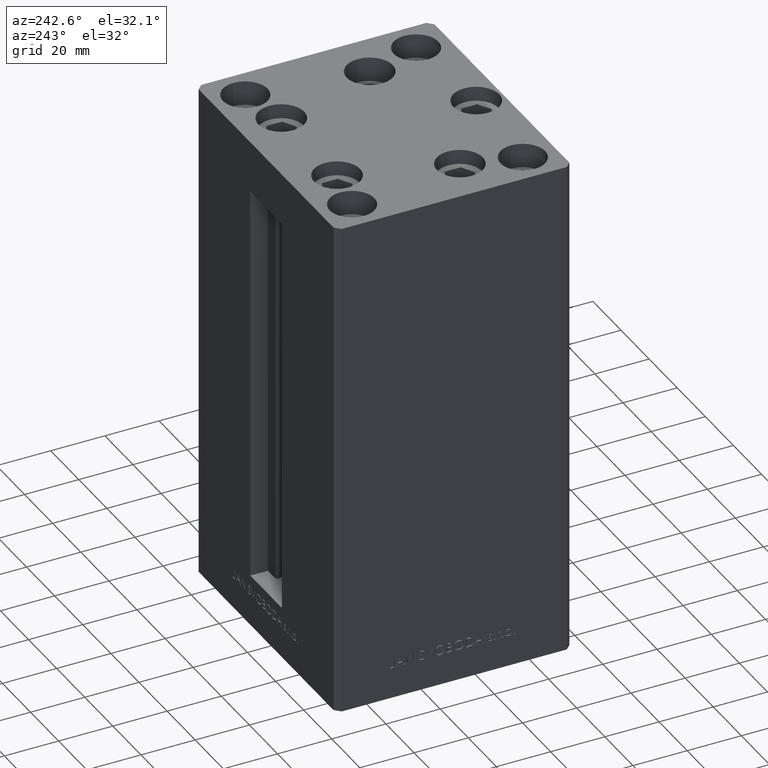
[diagram: clean part render]
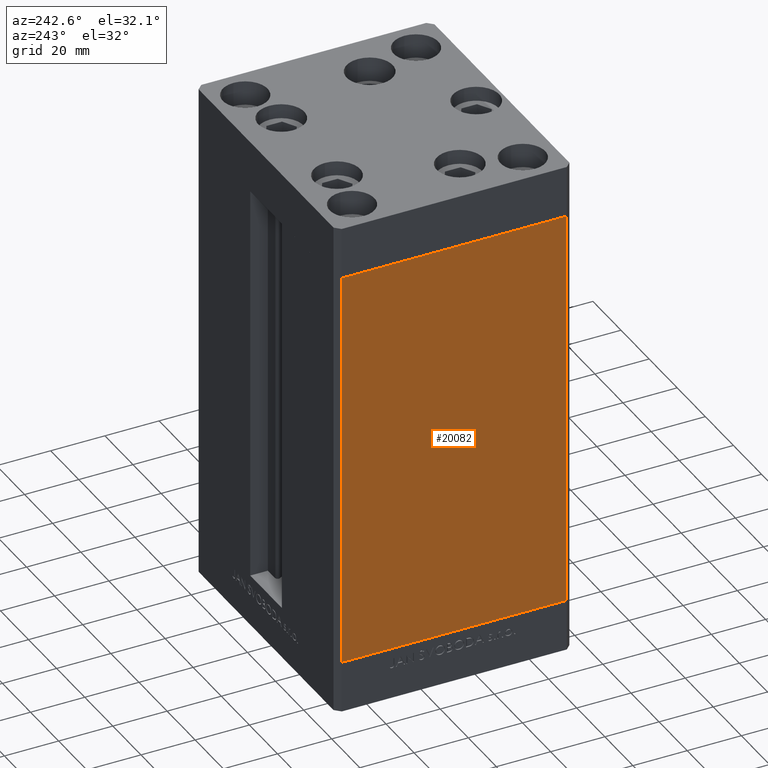
[diagram: same view with one face highlighted and labeled with its STEP entity id]
A machine part, auxiliary view. The second image highlights one B-rep face of the part: STEP entity #20082.
In plain terms, the highlighted planar face has unit normal (1, 0, 0).
Its self-contained STEP definition (entity closure, byte-faithful):
#306 = CARTESIAN_POINT ( 'NONE',  ( -50.00000000000001421, 41.49999999999999289, 0.000000000000000000 ) ) ;
#608 = CARTESIAN_POINT ( 'NONE',  ( -50.00000000000001421, 41.49999999999999289, 148.5000000000000000 ) ) ;
#6919 = EDGE_CURVE ( 'NONE', #11533, #36383, #27462, .T. ) ;
#7552 = DIRECTION ( 'NONE',  ( -0.000000000000000000, -0.000000000000000000, -1.000000000000000000 ) ) ;
#8911 = EDGE_CURVE ( 'NONE', #17163, #36383, #18743, .T. ) ;
#9240 = CARTESIAN_POINT ( 'NONE',  ( -49.99999999999998579, -41.49999999999999289, 148.5000000000000000 ) ) ;
#9359 = DIRECTION ( 'NONE',  ( -0.000000000000000000, -0.000000000000000000, -1.000000000000000000 ) ) ;
#9456 = ORIENTED_EDGE ( 'NONE', *, *, #8911, .F. ) ;
#9820 = VECTOR ( 'NONE', #36143, 1000.000000000000000 ) ;
#11533 = VERTEX_POINT ( 'NONE', #306 ) ;
#12468 = AXIS2_PLACEMENT_3D ( 'NONE', #14761, #13605, #43938 ) ;
#12838 = CARTESIAN_POINT ( 'NONE',  ( -50.00000000000001421, 41.49999999999999289, 148.5000000000000000 ) ) ;
#13185 = EDGE_CURVE ( 'NONE', #46264, #17163, #34407, .T. ) ;
#13605 = DIRECTION ( 'NONE',  ( 1.000000000000000000, 3.344045254895050480E-16, -0.000000000000000000 ) ) ;
#13830 = VECTOR ( 'NONE', #7552, 1000.000000000000000 ) ;
#14761 = CARTESIAN_POINT ( 'NONE',  ( -50.00000000000001421, 41.49999999999999289, 148.5000000000000000 ) ) ;
#15284 = DIRECTION ( 'NONE',  ( 3.344045254895050973E-16, -1.000000000000000000, 0.000000000000000000 ) ) ;
#16250 = ORIENTED_EDGE ( 'NONE', *, *, #6919, .T. ) ;
#17163 = VERTEX_POINT ( 'NONE', #9240 ) ;
#18743 = LINE ( 'NONE', #44855, #13830 ) ;
#20082 = ADVANCED_FACE ( 'NONE', ( #32489 ), #47666, .F. ) ;
#22850 = EDGE_LOOP ( 'NONE', ( #16250, #9456, #29389, #32712 ) ) ;
#27462 = LINE ( 'NONE', #31676, #9820 ) ;
#29389 = ORIENTED_EDGE ( 'NONE', *, *, #13185, .F. ) ;
#31676 = CARTESIAN_POINT ( 'NONE',  ( -50.00000000000001421, 41.49999999999999289, 0.000000000000000000 ) ) ;
#32489 = FACE_OUTER_BOUND ( 'NONE', #22850, .T. ) ;
#32712 = ORIENTED_EDGE ( 'NONE', *, *, #45397, .T. ) ;
#34407 = LINE ( 'NONE', #608, #36074 ) ;
#36074 = VECTOR ( 'NONE', #15284, 1000.000000000000000 ) ;
#36143 = DIRECTION ( 'NONE',  ( 3.344045254895050973E-16, -1.000000000000000000, 0.000000000000000000 ) ) ;
#36383 = VERTEX_POINT ( 'NONE', #46407 ) ;
#42704 = CARTESIAN_POINT ( 'NONE',  ( -50.00000000000001421, 41.49999999999999289, 148.5000000000000000 ) ) ;
#43938 = DIRECTION ( 'NONE',  ( -3.344045254895050480E-16, 1.000000000000000000, 0.000000000000000000 ) ) ;
#44855 = CARTESIAN_POINT ( 'NONE',  ( -49.99999999999998579, -41.49999999999999289, 148.5000000000000000 ) ) ;
#45397 = EDGE_CURVE ( 'NONE', #46264, #11533, #46907, .T. ) ;
#46264 = VERTEX_POINT ( 'NONE', #42704 ) ;
#46407 = CARTESIAN_POINT ( 'NONE',  ( -49.99999999999998579, -41.49999999999999289, 0.000000000000000000 ) ) ;
#46907 = LINE ( 'NONE', #12838, #48619 ) ;
#47666 = PLANE ( 'NONE',  #12468 ) ;
#48619 = VECTOR ( 'NONE', #9359, 1000.000000000000000 ) ;